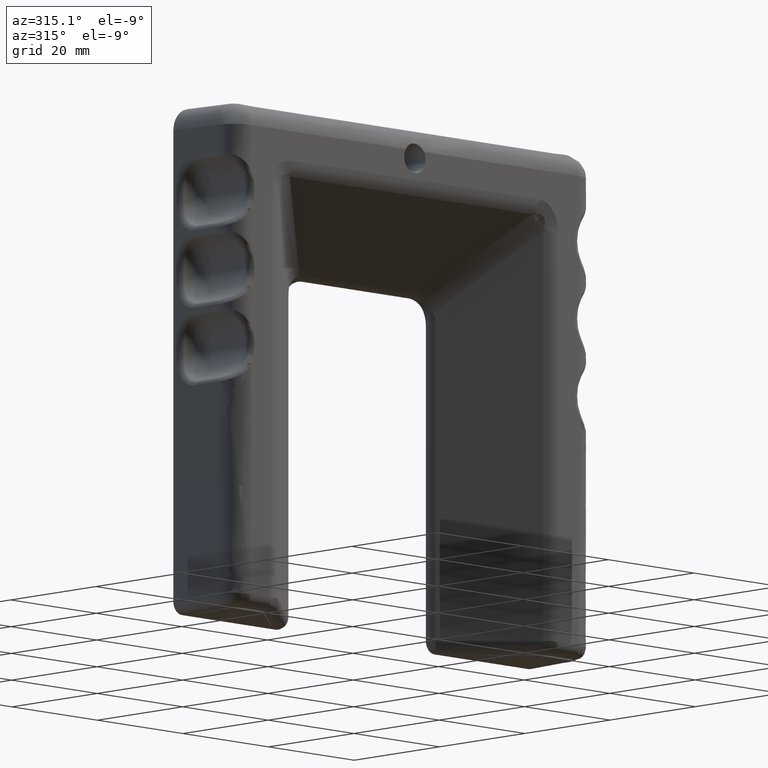
[diagram: clean part render]
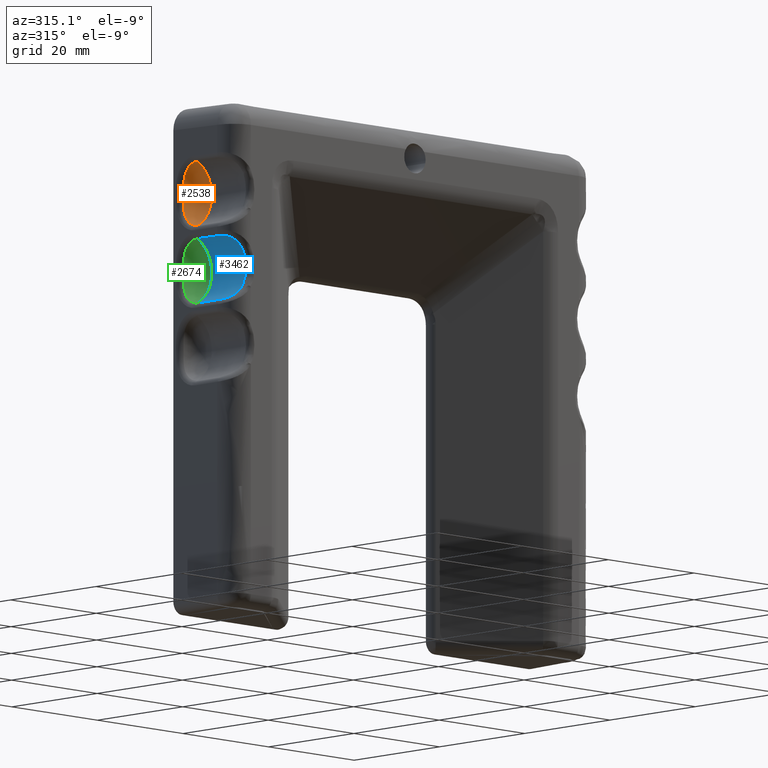
[diagram: same view with three faces highlighted in distinct colors, each labeled with its STEP entity id]
A machine part, auxiliary view with three faces highlighted in distinct colors.
Their STEP definitions:

[orange] entity #2538 — the highlighted face is a freeform B-spline surface patch.
#2406=CARTESIAN_POINT('',(-42.381732726820893,-5.674698236951155,16.608975936963503));
#2407=CARTESIAN_POINT('',(-38.504365005533096,-5.674698236951156,15.144662086890991));
#2408=CARTESIAN_POINT('',(-38.504362643758050,-5.674698236951156,11.000003416072206));
#2409=CARTESIAN_POINT('',(-38.504360281983018,-5.674698236951156,6.855344745253420));
#2410=CARTESIAN_POINT('',(-42.381726334431313,-5.674698236951155,5.391026476255707));
#2411=CARTESIAN_POINT('',(-42.354216598247362,-4.116295220654493,16.681836101975620));
#2412=CARTESIAN_POINT('',(-38.426482169179444,-4.116295220654494,15.198500927879589));
#2413=CARTESIAN_POINT('',(-38.426479776725131,-4.116295220654494,11.000003460452655));
#2414=CARTESIAN_POINT('',(-38.426477384270818,-4.116295220654494,6.801505993025717));
#2415=CARTESIAN_POINT('',(-42.354210122821108,-4.116295220654493,5.318166342602980));
#2416=CARTESIAN_POINT('',(-42.745349306732784,-3.016722077959861,15.646152844219030));
#2417=CARTESIAN_POINT('',(-39.533561046432084,-3.016722077959861,14.433199528690684));
#2418=CARTESIAN_POINT('',(-39.533559090073567,-3.016722077959861,11.000002829599190));
#2419=CARTESIAN_POINT('',(-39.533557133715057,-3.016722077959861,7.566806130507686));
#2420=CARTESIAN_POINT('',(-42.745344011645145,-3.016722077959861,6.353849154596040));
#2421=CARTESIAN_POINT('',(-43.076702589151829,-2.085204047922048,14.768759980980915));
#2422=CARTESIAN_POINT('',(-40.471437659449045,-2.085204047922047,13.784864257413872));
#2423=CARTESIAN_POINT('',(-40.471436072534893,-2.085204047922048,11.000002295163274));
#2424=CARTESIAN_POINT('',(-40.471434485620755,-2.085204047922047,8.215140332912675));
#2425=CARTESIAN_POINT('',(-43.076698294003748,-2.085204047922048,7.231241640199633));
#2426=CARTESIAN_POINT('',(-43.542887167091756,-2.006248975286396,13.534346310320773));
#2427=CARTESIAN_POINT('',(-41.790946582997655,-2.006248975286396,12.872714232530365));
#2428=CARTESIAN_POINT('',(-41.790945515858851,-2.006248975286396,11.000001543259506));
#2429=CARTESIAN_POINT('',(-41.790944448720062,-2.006248975286396,9.127288853988643));
#2430=CARTESIAN_POINT('',(-43.542884278769691,-2.006248975286396,8.465654779561611));
#2438=(BOUNDED_SURFACE()B_SPLINE_SURFACE(2,2,((#2406,#2411,#2416,#2421,#2426),(#2407,#2412,#2417,#2422,#2427),(#2408,#2413,#2418,#2423,#2428),(#2409,#2414,#2419,#2424,#2429),(#2410,#2415,#2420,#2425,#2430)),.UNSPECIFIED.,.F.,.F.,.U.)B_SPLINE_SURFACE_WITH_KNOTS((3,2,3),(3,2,3),(0.0,7.475880774824408,14.951761549648820),(0.0,3.086335519484820,5.765041819415041),.UNSPECIFIED.)GEOMETRIC_REPRESENTATION_ITEM()RATIONAL_B_SPLINE_SURFACE(((0.761752169857399,0.753364911309349,0.893152553776853,0.771827430125812,0.762121420233728),(0.663030087276588,0.655729806440937,0.777401153701776,0.671799607022557,0.663351483288220),(0.852880246085841,0.843489623495575,1.0,0.864160805298047,0.853293669721890),(0.663030087276588,0.655729806440937,0.777401153701776,0.671799607022557,0.663351483288220),(0.761752169857399,0.753364911309349,0.893152553776853,0.771827430125812,0.762121420233728)))REPRESENTATION_ITEM('')SURFACE());
#2439=CARTESIAN_POINT('',(-41.853633440458303,-5.499999999999170,16.384862489227402));
#2440=VERTEX_POINT('',#2439);
#2441=CARTESIAN_POINT('',(-41.853633440458303,-5.499999999999170,5.615137509858960));
#2442=VERTEX_POINT('',#2441);
#2443=CARTESIAN_POINT('',(-41.853633440458303,-5.499999999999170,16.384862489227402));
#2444=CARTESIAN_POINT('',(-41.856584676132613,-5.346579023171993,16.386312860785200));
#2445=CARTESIAN_POINT('',(-41.859085207057817,-5.192836833049045,16.376174705959809));
#2446=CARTESIAN_POINT('',(-41.863075096806057,-4.892064608962775,16.333926993754101));
#2447=CARTESIAN_POINT('',(-41.864579948323787,-4.744418569689763,16.301914349883649));
#2448=CARTESIAN_POINT('',(-41.866066833827922,-4.526973207329910,16.237903883717539));
#2449=CARTESIAN_POINT('',(-41.866433243167492,-4.455164559479135,16.213891770930690));
#2450=CARTESIAN_POINT('',(-41.866891260125293,-4.312908960998904,16.160455234230479));
#2451=CARTESIAN_POINT('',(-41.866982725785533,-4.242294338130806,16.130952680740560));
#2452=CARTESIAN_POINT('',(-41.866809569758722,-4.033647596257422,16.034625837007880));
#2453=CARTESIAN_POINT('',(-41.866105356694810,-3.901061219650717,15.961130904209540));
#2454=CARTESIAN_POINT('',(-41.863428018449987,-3.648082863807552,15.796770668121690));
#2455=CARTESIAN_POINT('',(-41.861455077945543,-3.527697002001820,15.705896634478570));
#2456=CARTESIAN_POINT('',(-41.857394951926473,-3.356150334014472,15.556722930956081));
#2457=CARTESIAN_POINT('',(-41.855857267489156,-3.300478069550162,15.504848036818119));
#2458=CARTESIAN_POINT('',(-41.852377290610796,-3.192185210896068,15.396753014662270));
#2459=CARTESIAN_POINT('',(-41.850444702862092,-3.139915694489551,15.340862795110910));
#2460=CARTESIAN_POINT('',(-41.839856134499200,-2.889769106241492,15.054935931639820));
#2461=CARTESIAN_POINT('',(-41.828362433258199,-2.722852288856742,14.803377574201960));
#2462=CARTESIAN_POINT('',(-41.809373697045729,-2.550845464899505,14.463808639519170));
#2463=CARTESIAN_POINT('',(-41.805334468720638,-2.518239921359452,14.394475692155570));
#2464=CARTESIAN_POINT('',(-41.796899618697772,-2.457431760902418,14.255270738367940));
#2465=CARTESIAN_POINT('',(-41.792492702093533,-2.429110422737158,14.185185529800430));
#2466=CARTESIAN_POINT('',(-41.778726276825729,-2.349893752683583,13.973599450390330));
#2467=CARTESIAN_POINT('',(-41.768812917901847,-2.304740746312602,13.830769913942140));
#2468=CARTESIAN_POINT('',(-41.737277260102609,-2.188646024967524,13.397795551593960));
#2469=CARTESIAN_POINT('',(-41.713644232131649,-2.137120293083624,13.103168227407631));
#2470=CARTESIAN_POINT('',(-41.678992795801733,-2.084545828564952,12.655278527099309));
#2471=CARTESIAN_POINT('',(-41.667619615950969,-2.071117510348199,12.504823677646741));
#2472=CARTESIAN_POINT('',(-41.646643260876452,-2.050224541108152,12.203240302985320));
#2473=CARTESIAN_POINT('',(-41.637054923565401,-2.042741948170684,12.052158814539100));
#2474=CARTESIAN_POINT('',(-41.621037559603842,-2.031682745850847,11.749870828853471));
#2475=CARTESIAN_POINT('',(-41.614618026880983,-2.028096164332299,11.598632224094590));
#2476=CARTESIAN_POINT('',(-41.605967142069417,-2.023487758396749,11.295960105820789));
#2477=CARTESIAN_POINT('',(-41.603743771350558,-2.022462831211196,11.144519515205030));
#2478=CARTESIAN_POINT('',(-41.603883224770392,-2.022530471401179,10.841467448515260));
#2479=CARTESIAN_POINT('',(-41.606245554724687,-2.023623012561760,10.690070680425681));
#2480=CARTESIAN_POINT('',(-41.615145942162002,-2.028391686761656,10.387533338505740));
#2481=CARTESIAN_POINT('',(-41.621675770829562,-2.032071147889947,10.236392526453290));
#2482=CARTESIAN_POINT('',(-41.637867057134102,-2.043359831114292,9.934366129825127));
#2483=CARTESIAN_POINT('',(-41.647516232091839,-2.050975274169855,9.783480229361423));
#2484=CARTESIAN_POINT('',(-41.668593298724552,-2.072216952660157,9.481973066627335));
#2485=CARTESIAN_POINT('',(-41.680002922891518,-2.085854782281554,9.331463188146685));
#2486=CARTESIAN_POINT('',(-41.714786712005278,-2.139332885533741,8.882497363267980));
#2487=CARTESIAN_POINT('',(-41.738538472765050,-2.191756037406010,8.586060361627473));
#2488=CARTESIAN_POINT('',(-41.765017449139833,-2.291217627683201,8.220997110387646));
#2489=CARTESIAN_POINT('',(-41.770164315642553,-2.312810465270323,8.148294845724184));
#2490=CARTESIAN_POINT('',(-41.780046280696013,-2.359321360079489,8.004659839756426));
#2491=CARTESIAN_POINT('',(-41.784791856466747,-2.384275486949824,7.933586909991356));
#2492=CARTESIAN_POINT('',(-41.798415360865327,-2.464525096788218,7.722729868476797));
#2493=CARTESIAN_POINT('',(-41.806676459491293,-2.525200481833008,7.585304024248304));
#2494=CARTESIAN_POINT('',(-41.817831177561331,-2.628184851775540,7.384421032424101));
#2495=CARTESIAN_POINT('',(-41.821344369783688,-2.664509407589331,7.318336606372967));
#2496=CARTESIAN_POINT('',(-41.827968377232487,-2.741385148914539,7.188025450432973));
#2497=CARTESIAN_POINT('',(-41.831088306516129,-2.782081500971005,7.123594201370753));
#2498=CARTESIAN_POINT('',(-41.839771082034162,-2.909551069609752,6.935228153338933));
#2499=CARTESIAN_POINT('',(-41.844672296857851,-3.001701121551501,6.816042800160234));
#2500=CARTESIAN_POINT('',(-41.852931768784572,-3.200740427418707,6.590821715107126));
#2501=CARTESIAN_POINT('',(-41.856290750810437,-3.307620812493343,6.484778063377791));
#2502=CARTESIAN_POINT('',(-41.860294483737682,-3.479713030518467,6.336221954241474));
#2503=CARTESIAN_POINT('',(-41.861458250087253,-3.539249514420449,6.288324123070021));
#2504=CARTESIAN_POINT('',(-41.863426789309663,-3.660646012619766,6.197505042164736));
#2505=CARTESIAN_POINT('',(-41.864236269740793,-3.722648940118067,6.154438008031042));
#2506=CARTESIAN_POINT('',(-41.866182963940517,-3.912538933876601,6.032205894937249));
#2507=CARTESIAN_POINT('',(-41.866841782540632,-4.044289616065163,5.959978223979137));
#2508=CARTESIAN_POINT('',(-41.866976150417692,-4.249823005960737,5.865836304523803));
#2509=CARTESIAN_POINT('',(-41.866877771968433,-4.319656255160087,5.836829844931821));
#2510=CARTESIAN_POINT('',(-41.866402000807831,-4.462052675006332,5.783719326132551));
#2511=CARTESIAN_POINT('',(-41.866023695857827,-4.534499925240735,5.759688443428031));
#2512=CARTESIAN_POINT('',(-41.864507818218023,-4.752327314659345,5.696173561983094));
#2513=CARTESIAN_POINT('',(-41.862989663499903,-4.899352187287901,5.664771247310748));
#2514=CARTESIAN_POINT('',(-41.859018776982133,-5.196964120702789,5.623534548773671));
#2515=CARTESIAN_POINT('',(-41.856565987766260,-5.347550544167833,5.613696322615125));
#2516=CARTESIAN_POINT('',(-41.853633440458303,-5.499999999999173,5.615137509858950));
#2517=B_SPLINE_CURVE_WITH_KNOTS('',3,(#2443,#2444,#2445,#2446,#2447,#2448,#2449,#2450,#2451,#2452,#2453,#2454,#2455,#2456,#2457,#2458,#2459,#2460,#2461,#2462,#2463,#2464,#2465,#2466,#2467,#2468,#2469,#2470,#2471,#2472,#2473,#2474,#2475,#2476,#2477,#2478,#2479,#2480,#2481,#2482,#2483,#2484,#2485,#2486,#2487,#2488,#2489,#2490,#2491,#2492,#2493,#2494,#2495,#2496,#2497,#2498,#2499,#2500,#2501,#2502,#2503,#2504,#2505,#2506,#2507,#2508,#2509,#2510,#2511,#2512,#2513,#2514,#2515,#2516),.UNSPECIFIED.,.F.,.U.,(4,2,2,2,2,2,2,2,2,2,2,2,2,2,2,2,2,2,2,2,2,2,2,2,2,2,2,2,2,2,2,2,2,2,2,2,4),(0.0,0.031250000000000,0.062499999999999,0.078124999999999,0.093749999999999,0.124999999999998,0.156249999999998,0.171874999999998,0.187499999999998,0.249999999999997,0.265624999999998,0.281249999999998,0.312499999999998,0.374999999999998,0.406249999999999,0.437499999999999,0.468749999999999,0.499999999999999,0.531250000000000,0.562500000000000,0.593750000000000,0.625000000000001,0.687500000000001,0.703125000000001,0.718750000000001,0.750000000000001,0.765625000000001,0.781250000000001,0.812500000000001,0.843750000000001,0.859375000000001,0.875000000000001,0.906250000000001,0.921875000000000,0.937500000000000,0.968750000000000,1.0),.UNSPECIFIED.);
#2518=EDGE_CURVE('',#2440,#2442,#2517,.T.);
#2519=ORIENTED_EDGE('',*,*,#2518,.T.);
#2520=CARTESIAN_POINT('',(-41.853633440458303,-5.499999999999170,16.384862489227402));
#2521=CARTESIAN_POINT('',(-41.525574963171337,-5.499999999999178,16.223651866385520));
#2522=CARTESIAN_POINT('',(-40.779594776877488,-5.499999999999155,15.768267096299020));
#2523=CARTESIAN_POINT('',(-39.868950181326568,-5.499999999999182,14.892748794143831));
#2524=CARTESIAN_POINT('',(-39.175775474862512,-5.499999999999162,13.841686515470940));
#2525=CARTESIAN_POINT('',(-38.710523718154597,-5.499999999999139,12.728962841536431));
#2526=CARTESIAN_POINT('',(-38.453677442291280,-5.499999999999282,11.404728012724350));
#2527=CARTESIAN_POINT('',(-38.523411371503173,-5.499999999999080,10.072377219611040));
#2528=CARTESIAN_POINT('',(-38.882031017730768,-5.499999999999249,8.775641146144430));
#2529=CARTESIAN_POINT('',(-39.450386301638297,-5.499999999999135,7.668585977492370));
#2530=CARTESIAN_POINT('',(-40.426976083261309,-5.499999999999160,6.500339658524500));
#2531=CARTESIAN_POINT('',(-41.291050719871180,-5.499999999999202,5.891220414877570));
#2532=CARTESIAN_POINT('',(-41.853633440458303,-5.499999999999170,5.615137509858960));
#2533=B_SPLINE_CURVE_WITH_KNOTS('',3,(#2520,#2521,#2522,#2523,#2524,#2525,#2526,#2527,#2528,#2529,#2530,#2531,#2532),.UNSPECIFIED.,.F.,.U.,(4,1,1,1,1,1,1,1,1,1,4),(0.000000165193429,1.096605486409064,2.610977931909551,3.759821957662760,4.856444502973250,6.214148787147471,7.780689847575085,8.825115819465960,10.235052703591840,11.488348548032739,13.368230465651781),.UNSPECIFIED.);
#2534=EDGE_CURVE('',#2440,#2442,#2533,.T.);
#2535=ORIENTED_EDGE('',*,*,#2534,.F.);
#2536=EDGE_LOOP('',(#2519,#2535));
#2537=FACE_OUTER_BOUND('',#2536,.T.);
#2538=ADVANCED_FACE('',(#2537),#2438,.F.);

[blue] entity #3462 — the highlighted face is a freeform B-spline surface patch.
#2572=CARTESIAN_POINT('',(-41.853633440458303,-5.499999999999170,3.384862489228200));
#2573=VERTEX_POINT('',#2572);
#2574=CARTESIAN_POINT('',(-41.853633440458303,-5.499999999999170,-7.384862490140249));
#2575=VERTEX_POINT('',#2574);
#2653=CARTESIAN_POINT('',(-41.853633440458303,-5.499999999999170,3.384862489228200));
#2654=CARTESIAN_POINT('',(-41.400529717686432,-5.499999999999167,3.162342357925617));
#2655=CARTESIAN_POINT('',(-40.668304418189230,-5.499999999999179,2.679206504027464));
#2656=CARTESIAN_POINT('',(-39.816348780401050,-5.499999999999161,1.800988269979214));
#2657=CARTESIAN_POINT('',(-39.153462308504821,-5.499999999999186,0.814936055052704));
#2658=CARTESIAN_POINT('',(-38.736405464446527,-5.499999999999121,-0.207464453458691));
#2659=CARTESIAN_POINT('',(-38.521394882580530,-5.499999999999204,-1.267711618802484));
#2660=CARTESIAN_POINT('',(-38.477916961783222,-5.499999999999083,-2.174885449697641));
#2661=CARTESIAN_POINT('',(-38.584032544414200,-5.499999999999225,-3.146533523650364));
#2662=CARTESIAN_POINT('',(-38.812239930880992,-5.499999999999150,-3.971713885559584));
#2663=CARTESIAN_POINT('',(-39.172740115365407,-5.499999999999170,-4.803334865691634));
#2664=CARTESIAN_POINT('',(-39.591686216325783,-5.499999999999170,-5.489242350104749));
#2665=CARTESIAN_POINT('',(-40.218014807748268,-5.499999999999169,-6.238550957440070));
#2666=CARTESIAN_POINT('',(-40.942410801322332,-5.499999999999165,-6.871159139904701));
#2667=CARTESIAN_POINT('',(-41.556819534468232,-5.499999999999176,-7.239016679783704));
#2668=CARTESIAN_POINT('',(-41.853633440458303,-5.499999999999170,-7.384862490140249));
#2669=B_SPLINE_CURVE_WITH_KNOTS('',3,(#2653,#2654,#2655,#2656,#2657,#2658,#2659,#2660,#2661,#2662,#2663,#2664,#2665,#2666,#2667,#2668),.UNSPECIFIED.,.F.,.U.,(4,1,1,1,1,1,1,1,1,1,1,1,1,4),(0.000000165205561,1.514347745902303,2.610977931916528,3.655381548918422,5.065313279445338,5.900859505918025,6.892959095599444,7.780689847578555,8.825115819468714,9.451748053547680,10.496157282391470,11.227229958579141,12.376095491619649,13.368230465651790),.UNSPECIFIED.);
#2670=EDGE_CURVE('',#2573,#2575,#2669,.T.);
#3338=CARTESIAN_POINT('',(-41.900725399658050,-5.299999999999166,3.407751061887848));
#3339=CARTESIAN_POINT('',(-41.900725399658050,-13.704999999999300,3.407751061887848));
#3340=CARTESIAN_POINT('',(-30.034498697349449,-5.299999999999166,-2.295836494755114));
#3341=CARTESIAN_POINT('',(-30.034498697349449,-13.704999999999302,-2.295836494755114));
#3342=CARTESIAN_POINT('',(-42.123996036085103,-5.299999999999166,-7.509501353909180));
#3343=CARTESIAN_POINT('',(-42.123996036085103,-13.704999999999300,-7.509501353909180));
#3351=(BOUNDED_SURFACE()B_SPLINE_SURFACE(1,2,((#3338,#3340,#3342),(#3339,#3341,#3343)),.UNSPECIFIED.,.F.,.F.,.U.)B_SPLINE_SURFACE_WITH_KNOTS((2,2),(3,3),(0.0,8.405000000000138),(0.0,15.437318736344441),.UNSPECIFIED.)GEOMETRIC_REPRESENTATION_ITEM()RATIONAL_B_SPLINE_SURFACE(((1.0,0.414693242656239,1.0),(1.0,0.414693242656239,1.0)))REPRESENTATION_ITEM('')SURFACE());
#3352=ORIENTED_EDGE('',*,*,#2670,.T.);
#3353=CARTESIAN_POINT('',(-41.778042677626651,-10.552357219311061,-7.347050433681300));
#3354=VERTEX_POINT('',#3353);
#3355=CARTESIAN_POINT('',(-41.853633440458303,-5.499999999999170,-7.384862490140249));
#3356=CARTESIAN_POINT('',(-41.778042677626651,-10.552357219311061,-7.347050433681300));
#3357=QUASI_UNIFORM_CURVE('',1,(#3355,#3356),.UNSPECIFIED.,.F.,.U.);
#3358=EDGE_CURVE('',#2575,#3354,#3357,.T.);
#3359=ORIENTED_EDGE('',*,*,#3358,.T.);
#3360=CARTESIAN_POINT('',(-39.207005747235343,-13.499999999999259,-4.825634768209620));
#3361=VERTEX_POINT('',#3360);
#3362=CARTESIAN_POINT('',(-41.778042677626651,-10.552357219311061,-7.347050433681300));
#3363=CARTESIAN_POINT('',(-41.776375908267752,-10.663761230701329,-7.346201951865429));
#3364=CARTESIAN_POINT('',(-41.769410848817550,-10.774717563258630,-7.342665349898638));
#3365=CARTESIAN_POINT('',(-41.744882385035822,-10.995729326470009,-7.330057887234236));
#3366=CARTESIAN_POINT('',(-41.727392986307613,-11.104935414135999,-7.321023942113147));
#3367=CARTESIAN_POINT('',(-41.682432108339817,-11.319557450120159,-7.297353737554835));
#3368=CARTESIAN_POINT('',(-41.654938308527761,-11.425170942516480,-7.282707330838485));
#3369=CARTESIAN_POINT('',(-41.606170684935371,-11.580977223646910,-7.256053185801873));
#3370=CARTESIAN_POINT('',(-41.588657772137992,-11.632475869932509,-7.246384457484560));
#3371=CARTESIAN_POINT('',(-41.551085824118879,-11.734574269158330,-7.225358229513076));
#3372=CARTESIAN_POINT('',(-41.530964392441810,-11.785317479782620,-7.213964840522746));
#3373=CARTESIAN_POINT('',(-41.424625891916122,-12.034926714846341,-7.152834440763589));
#3374=CARTESIAN_POINT('',(-41.322431442989732,-12.219411489335110,-7.091444885893211));
#3375=CARTESIAN_POINT('',(-41.175612601279020,-12.430827241401660,-6.994965764431727));
#3376=CARTESIAN_POINT('',(-41.145288458485823,-12.472142058482660,-6.974670329325537));
#3377=CARTESIAN_POINT('',(-41.082755441995822,-12.552796462374589,-6.931923969709834));
#3378=CARTESIAN_POINT('',(-41.050456659674232,-12.592238875343480,-6.909408823969845));
#3379=CARTESIAN_POINT('',(-40.951397083694893,-12.706817708256850,-6.838800921559728));
#3380=CARTESIAN_POINT('',(-40.883201699645852,-12.777426111869350,-6.788173897482996));
#3381=CARTESIAN_POINT('',(-40.743493374926722,-12.907818297994320,-6.679369315802893));
#3382=CARTESIAN_POINT('',(-40.671977993560503,-12.967598706634821,-6.621191140076685));
#3383=CARTESIAN_POINT('',(-40.562895487359746,-13.049554634969629,-6.527858000054050));
#3384=CARTESIAN_POINT('',(-40.526232654286900,-13.075586368452379,-6.495735284789559));
#3385=CARTESIAN_POINT('',(-40.452414062481473,-13.125133834464339,-6.429391690413794));
#3386=CARTESIAN_POINT('',(-40.415144148069110,-13.148712317940740,-6.395059368249481));
#3387=CARTESIAN_POINT('',(-40.230084397947643,-13.259162791125910,-6.220109902445761));
#3388=CARTESIAN_POINT('',(-40.085107204702233,-13.324779129444000,-6.068740982976676));
#3389=CARTESIAN_POINT('',(-39.875823900168442,-13.397994217200560,-5.824719374777250));
#3390=CARTESIAN_POINT('',(-39.807416314802772,-13.418162963787610,-5.740546878903990));
#3391=CARTESIAN_POINT('',(-39.707224354228117,-13.442959579291500,-5.610029052662553));
#3392=CARTESIAN_POINT('',(-39.674241315022080,-13.450307459511739,-5.565819965106651));
#3393=CARTESIAN_POINT('',(-39.609748606836369,-13.463221612915181,-5.476846303876460));
#3394=CARTESIAN_POINT('',(-39.578155468570642,-13.468809613295941,-5.431974884646675));
#3395=CARTESIAN_POINT('',(-39.423439581536783,-13.492902259086780,-5.205716373847555));
#3396=CARTESIAN_POINT('',(-39.310041613994798,-13.499999999998760,-5.018642108296531));
#3397=CARTESIAN_POINT('',(-39.207005747235343,-13.499999999999259,-4.825634768209631));
#3398=B_SPLINE_CURVE_WITH_KNOTS('',3,(#3362,#3363,#3364,#3365,#3366,#3367,#3368,#3369,#3370,#3371,#3372,#3373,#3374,#3375,#3376,#3377,#3378,#3379,#3380,#3381,#3382,#3383,#3384,#3385,#3386,#3387,#3388,#3389,#3390,#3391,#3392,#3393,#3394,#3395,#3396,#3397),.UNSPECIFIED.,.F.,.U.,(4,2,2,2,2,2,2,2,2,2,2,2,2,2,2,2,2,4),(0.0,0.062499999999999,0.124999999999999,0.187499999999998,0.218749999999998,0.249999999999997,0.374999999999994,0.406249999999994,0.437499999999995,0.499999999999996,0.562499999999997,0.593749999999998,0.624999999999998,0.749999999999999,0.812499999999999,0.843749999999998,0.874999999999997,1.0),.UNSPECIFIED.);
#3399=EDGE_CURVE('',#3354,#3361,#3398,.T.);
#3400=ORIENTED_EDGE('',*,*,#3399,.T.);
#3401=CARTESIAN_POINT('',(-39.207005747224500,-13.499999999999259,0.825634767277268));
#3402=VERTEX_POINT('',#3401);
#3403=CARTESIAN_POINT('',(-39.207005747235343,-13.499999999999259,-4.825634768209620));
#3404=CARTESIAN_POINT('',(-39.004876494874509,-13.499999999999259,-4.447160724984220));
#3405=CARTESIAN_POINT('',(-38.739994843606731,-13.499999999999330,-3.789560344169238));
#3406=CARTESIAN_POINT('',(-38.544428601800249,-13.499999999999250,-2.857532173181102));
#3407=CARTESIAN_POINT('',(-38.466742673324731,-13.499999999999391,-1.847239960675185));
#3408=CARTESIAN_POINT('',(-38.602312493115079,-13.499999999999170,-0.588532410588094));
#3409=CARTESIAN_POINT('',(-38.961505202423709,-13.499999999999330,0.366083735396186));
#3410=CARTESIAN_POINT('',(-39.207005747224500,-13.499999999999259,0.825634767277268));
#3411=B_SPLINE_CURVE_WITH_KNOTS('',3,(#3403,#3404,#3405,#3406,#3407,#3408,#3409,#3410),.UNSPECIFIED.,.F.,.U.,(4,1,1,1,1,4),(0.000000018463252,1.287194742678014,2.114687664589805,2.850220631414011,4.321295856517576,5.884318127223351),.UNSPECIFIED.);
#3412=EDGE_CURVE('',#3361,#3402,#3411,.T.);
#3413=ORIENTED_EDGE('',*,*,#3412,.T.);
#3414=CARTESIAN_POINT('',(-41.778042677626651,-10.552357219311061,3.347050432769250));
#3415=VERTEX_POINT('',#3414);
#3416=CARTESIAN_POINT('',(-39.207005747224493,-13.499999999999259,0.825634767277272));
#3417=CARTESIAN_POINT('',(-39.258541113165407,-13.499999999999270,0.922171092089058));
#3418=CARTESIAN_POINT('',(-39.312819213245092,-13.498201442717241,1.017493547479009));
#3419=CARTESIAN_POINT('',(-39.398429782957507,-13.491861874347260,1.158640415537677));
#3420=CARTESIAN_POINT('',(-39.427665997482507,-13.489140082715080,1.205383063356116));
#3421=CARTESIAN_POINT('',(-39.487556137091438,-13.482297969510460,1.298250951192903));
#3422=CARTESIAN_POINT('',(-39.518187302588778,-13.478176653668520,1.344333641107788));
#3423=CARTESIAN_POINT('',(-39.673555964633522,-13.453834037384921,1.571252174453445));
#3424=CARTESIAN_POINT('',(-39.805905193263300,-13.422401956768351,1.743133700113089));
#3425=CARTESIAN_POINT('',(-40.014331367122217,-13.349565158326710,1.986247722038791));
#3426=CARTESIAN_POINT('',(-40.085455538299037,-13.320987133853070,2.064831100988850));
#3427=CARTESIAN_POINT('',(-40.230582667454357,-13.253589145722660,2.217004899725182));
#3428=CARTESIAN_POINT('',(-40.304938173050672,-13.214511796942359,2.290890764952994));
#3429=CARTESIAN_POINT('',(-40.526075864207613,-13.082454935467300,2.499897346379100));
#3430=CARTESIAN_POINT('',(-40.672351428373616,-12.974267721513881,2.623982407972148));
#3431=CARTESIAN_POINT('',(-40.849074217231852,-12.809264937304871,2.761590869242701));
#3432=CARTESIAN_POINT('',(-40.883968017280608,-12.774888916475231,2.788122694734089));
#3433=CARTESIAN_POINT('',(-40.952159076591776,-12.703972286704330,2.838866708436357));
#3434=CARTESIAN_POINT('',(-40.985548296899772,-12.667347032446450,2.863150812120815));
#3435=CARTESIAN_POINT('',(-41.083477835153687,-12.553981589763641,2.932930436231281));
#3436=CARTESIAN_POINT('',(-41.145783171234747,-12.473758163096671,2.975360362513290));
#3437=CARTESIAN_POINT('',(-41.234255041822813,-12.346394801217050,3.033503271354919));
#3438=CARTESIAN_POINT('',(-41.262913986616070,-12.302767464440979,3.051965462661007));
#3439=CARTESIAN_POINT('',(-41.318471223284440,-12.213136163172880,3.087136280547104));
#3440=CARTESIAN_POINT('',(-41.345324161556412,-12.167185564370740,3.103814404323040));
#3441=CARTESIAN_POINT('',(-41.422164131308293,-12.027536221234049,3.150779635752654));
#3442=CARTESIAN_POINT('',(-41.468791353253813,-11.931493721604070,3.178235407797909));
#3443=CARTESIAN_POINT('',(-41.552816881897058,-11.733779672118761,3.226515040349301));
#3444=CARTESIAN_POINT('',(-41.590216518951927,-11.632108183322661,3.247336861341276));
#3445=CARTESIAN_POINT('',(-41.639186330200452,-11.475415151101990,3.274096240497901));
#3446=CARTESIAN_POINT('',(-41.654349535226018,-11.422350267988209,3.282283488975918));
#3447=CARTESIAN_POINT('',(-41.681972599746231,-11.315880313436470,3.297071549165511));
#3448=CARTESIAN_POINT('',(-41.694465083623903,-11.262394384595829,3.303690591778171));
#3449=CARTESIAN_POINT('',(-41.750444345495069,-10.993744636759351,3.333151482582984));
#3450=CARTESIAN_POINT('',(-41.774711997372989,-10.774974187237371,3.345354924260776));
#3451=CARTESIAN_POINT('',(-41.778042677626651,-10.552357219311061,3.347050432769250));
#3452=B_SPLINE_CURVE_WITH_KNOTS('',3,(#3416,#3417,#3418,#3419,#3420,#3421,#3422,#3423,#3424,#3425,#3426,#3427,#3428,#3429,#3430,#3431,#3432,#3433,#3434,#3435,#3436,#3437,#3438,#3439,#3440,#3441,#3442,#3443,#3444,#3445,#3446,#3447,#3448,#3449,#3450,#3451),.UNSPECIFIED.,.F.,.U.,(4,2,2,2,2,2,2,2,2,2,2,2,2,2,2,2,2,4),(0.0,0.062500000000003,0.093750000000004,0.125000000000006,0.250000000000009,0.312500000000010,0.375000000000011,0.500000000000010,0.531250000000009,0.562500000000008,0.625000000000007,0.656250000000005,0.687500000000003,0.750000000000002,0.812500000000001,0.843750000000000,0.875000000000000,1.0),.UNSPECIFIED.);
#3453=EDGE_CURVE('',#3402,#3415,#3452,.T.);
#3454=ORIENTED_EDGE('',*,*,#3453,.T.);
#3455=CARTESIAN_POINT('',(-41.778042677626651,-10.552357219311061,3.347050432769250));
#3456=CARTESIAN_POINT('',(-41.853633440458303,-5.499999999999170,3.384862489228200));
#3457=QUASI_UNIFORM_CURVE('',1,(#3455,#3456),.UNSPECIFIED.,.F.,.U.);
#3458=EDGE_CURVE('',#3415,#2573,#3457,.T.);
#3459=ORIENTED_EDGE('',*,*,#3458,.T.);
#3460=EDGE_LOOP('',(#3352,#3359,#3400,#3413,#3454,#3459));
#3461=FACE_OUTER_BOUND('',#3460,.T.);
#3462=ADVANCED_FACE('',(#3461),#3351,.F.);

[green] entity #2674 — the highlighted face is a freeform B-spline surface patch.
#2539=CARTESIAN_POINT('',(-42.383865508378982,-5.769605998660422,3.603328528541966));
#2540=CARTESIAN_POINT('',(-38.510401722385225,-5.769605998660421,2.140489025741059));
#2541=CARTESIAN_POINT('',(-38.510399362988139,-5.769605998660421,-1.999996587366942));
#2542=CARTESIAN_POINT('',(-38.510397003591052,-5.769605998660421,-6.140482200474941));
#2543=CARTESIAN_POINT('',(-42.383859122425555,-5.769605998660422,-7.603326117751847));
#2544=CARTESIAN_POINT('',(-42.339839923817038,-4.156711695017009,3.719904206961443));
#2545=CARTESIAN_POINT('',(-38.385789810188093,-4.156711695017008,2.226630738603225));
#2546=CARTESIAN_POINT('',(-38.385787401704420,-4.156711695017009,-1.999996516358580));
#2547=CARTESIAN_POINT('',(-38.385784993220746,-4.156711695017008,-6.226623771320386));
#2548=CARTESIAN_POINT('',(-42.339833405005649,-4.156711695017009,-7.719901745996535));
#2549=CARTESIAN_POINT('',(-42.745349306732784,-3.016722077959849,2.646152844219806));
#2550=CARTESIAN_POINT('',(-39.533561046432098,-3.016722077959850,1.433199528691473));
#2551=CARTESIAN_POINT('',(-39.533559090073581,-3.016722077959849,-1.999997170400020));
#2552=CARTESIAN_POINT('',(-39.533557133715071,-3.016722077959850,-5.433193869491512));
#2553=CARTESIAN_POINT('',(-42.745344011645138,-3.016722077959849,-6.646150845403153));
#2554=CARTESIAN_POINT('',(-43.076702589151829,-2.085204047922041,1.768759980981691));
#2555=CARTESIAN_POINT('',(-40.471437659449059,-2.085204047922042,0.784864257414653));
#2556=CARTESIAN_POINT('',(-40.471436072534907,-2.085204047922042,-1.999997704835933));
#2557=CARTESIAN_POINT('',(-40.471434485620762,-2.085204047922042,-4.784859667086523));
#2558=CARTESIAN_POINT('',(-43.076698294003748,-2.085204047922041,-5.768758359799558));
#2559=CARTESIAN_POINT('',(-43.542887167091763,-2.006248975286400,0.534346310321554));
#2560=CARTESIAN_POINT('',(-41.790946582997677,-2.006248975286401,-0.127285767468849));
#2561=CARTESIAN_POINT('',(-41.790945515858859,-2.006248975286400,-1.999998456739700));
#2562=CARTESIAN_POINT('',(-41.790944448720062,-2.006248975286401,-3.872711146010552));
#2563=CARTESIAN_POINT('',(-43.542884278769677,-2.006248975286400,-4.534345220437580));
#2571=(BOUNDED_SURFACE()B_SPLINE_SURFACE(2,2,((#2539,#2544,#2549,#2554,#2559),(#2540,#2545,#2550,#2555,#2560),(#2541,#2546,#2551,#2556,#2561),(#2542,#2547,#2552,#2557,#2562),(#2543,#2548,#2553,#2558,#2563)),.UNSPECIFIED.,.F.,.F.,.U.)B_SPLINE_SURFACE_WITH_KNOTS((3,2,3),(3,2,3),(0.0,7.468353669605357,14.936707339210709),(0.0,3.179934696401777,5.857343154173177),.UNSPECIFIED.)GEOMETRIC_REPRESENTATION_ITEM()RATIONAL_B_SPLINE_SURFACE(((0.762410073536189,0.749055761551016,0.893152553776853,0.771827430125810,0.762121420233727),(0.663602727501097,0.651979116842126,0.777401153701776,0.671799607022556,0.663351483288219),(0.853616854491659,0.838664972051528,1.0,0.864160805298045,0.853293669721889),(0.663602727501097,0.651979116842126,0.777401153701776,0.671799607022556,0.663351483288219),(0.762410073536189,0.749055761551016,0.893152553776853,0.771827430125810,0.762121420233727)))REPRESENTATION_ITEM('')SURFACE());
#2572=CARTESIAN_POINT('',(-41.853633440458303,-5.499999999999170,3.384862489228200));
#2573=VERTEX_POINT('',#2572);
#2574=CARTESIAN_POINT('',(-41.853633440458303,-5.499999999999170,-7.384862490140249));
#2575=VERTEX_POINT('',#2574);
#2576=CARTESIAN_POINT('',(-41.853633440458303,-5.499999999999170,3.384862489228195));
#2577=CARTESIAN_POINT('',(-41.856584676132613,-5.346579023171993,3.386312860785986));
#2578=CARTESIAN_POINT('',(-41.859085207057817,-5.192836833049046,3.376174705960596));
#2579=CARTESIAN_POINT('',(-41.863075096806050,-4.892064608962775,3.333926993754893));
#2580=CARTESIAN_POINT('',(-41.864579948323787,-4.744418569689764,3.301914349884454));
#2581=CARTESIAN_POINT('',(-41.866066833827922,-4.526973207329910,3.237903883718335));
#2582=CARTESIAN_POINT('',(-41.866433243167492,-4.455164559479136,3.213891770931484));
#2583=CARTESIAN_POINT('',(-41.866891260125271,-4.312908960998902,3.160455234231270));
#2584=CARTESIAN_POINT('',(-41.866982725785547,-4.242294338130813,3.130952680741355));
#2585=CARTESIAN_POINT('',(-41.866809569758722,-4.033647596257425,3.034625837008678));
#2586=CARTESIAN_POINT('',(-41.866105356694810,-3.901061219650722,2.961130904210335));
#2587=CARTESIAN_POINT('',(-41.863428018450001,-3.648082863807555,2.796770668122478));
#2588=CARTESIAN_POINT('',(-41.861455077945543,-3.527697002001823,2.705896634479364));
#2589=CARTESIAN_POINT('',(-41.857394951926487,-3.356150334014476,2.556722930956878));
#2590=CARTESIAN_POINT('',(-41.855857267489156,-3.300478069550167,2.504848036818912));
#2591=CARTESIAN_POINT('',(-41.852377290610818,-3.192185210896072,2.396753014663070));
#2592=CARTESIAN_POINT('',(-41.850444702862099,-3.139915694489552,2.340862795111703));
#2593=CARTESIAN_POINT('',(-41.839856134499200,-2.889769106241493,2.054935931640605));
#2594=CARTESIAN_POINT('',(-41.828362433258206,-2.722852288856744,1.803377574202763));
#2595=CARTESIAN_POINT('',(-41.809373697045721,-2.550845464899507,1.463808639519961));
#2596=CARTESIAN_POINT('',(-41.805334468720652,-2.518239921359454,1.394475692156365));
#2597=CARTESIAN_POINT('',(-41.796899618697772,-2.457431760902420,1.255270738368736));
#2598=CARTESIAN_POINT('',(-41.792492702093547,-2.429110422737160,1.185185529801223));
#2599=CARTESIAN_POINT('',(-41.778726276825729,-2.349893752683583,0.973599450391126));
#2600=CARTESIAN_POINT('',(-41.768812917901847,-2.304740746312603,0.830769913942936));
#2601=CARTESIAN_POINT('',(-41.737277260102601,-2.188646024967525,0.397795551594758));
#2602=CARTESIAN_POINT('',(-41.713644232131649,-2.137120293083625,0.103168227408429));
#2603=CARTESIAN_POINT('',(-41.678992795801733,-2.084545828564951,-0.344721472899893));
#2604=CARTESIAN_POINT('',(-41.667619615950983,-2.071117510348201,-0.495176322352455));
#2605=CARTESIAN_POINT('',(-41.646643260876438,-2.050224541108151,-0.796759697013875));
#2606=CARTESIAN_POINT('',(-41.637054923565401,-2.042741948170685,-0.947841185460104));
#2607=CARTESIAN_POINT('',(-41.621037559603828,-2.031682745850847,-1.250129171145727));
#2608=CARTESIAN_POINT('',(-41.614618026880969,-2.028096164332299,-1.401367775904611));
#2609=CARTESIAN_POINT('',(-41.605967142069417,-2.023487758396748,-1.704039894178406));
#2610=CARTESIAN_POINT('',(-41.603743771350558,-2.022462831211196,-1.855480484794172));
#2611=CARTESIAN_POINT('',(-41.603883224770392,-2.022530471401179,-2.158532551483936));
#2612=CARTESIAN_POINT('',(-41.606245554724687,-2.023623012561760,-2.309929319573520));
#2613=CARTESIAN_POINT('',(-41.615145942162009,-2.028391686761655,-2.612466661493466));
#2614=CARTESIAN_POINT('',(-41.621675770829562,-2.032071147889947,-2.763607473545912));
#2615=CARTESIAN_POINT('',(-41.637867057134088,-2.043359831114292,-3.065633870174072));
#2616=CARTESIAN_POINT('',(-41.647516232091839,-2.050975274169854,-3.216519770637779));
#2617=CARTESIAN_POINT('',(-41.668593298724552,-2.072216952660158,-3.518026933371868));
#2618=CARTESIAN_POINT('',(-41.680002922891511,-2.085854782281554,-3.668536811852519));
#2619=CARTESIAN_POINT('',(-41.714786712005292,-2.139332885533742,-4.117502636731219));
#2620=CARTESIAN_POINT('',(-41.738538472765043,-2.191756037406007,-4.413939638371723));
#2621=CARTESIAN_POINT('',(-41.765017449139833,-2.291217627683198,-4.779002889611554));
#2622=CARTESIAN_POINT('',(-41.770164315642553,-2.312810465270323,-4.851705154275019));
#2623=CARTESIAN_POINT('',(-41.780046280696020,-2.359321360079488,-4.995340160242777));
#2624=CARTESIAN_POINT('',(-41.784791856466732,-2.384275486949822,-5.066413090007847));
#2625=CARTESIAN_POINT('',(-41.798415360865320,-2.464525096788217,-5.277270131522403));
#2626=CARTESIAN_POINT('',(-41.806676459491293,-2.525200481833006,-5.414695975750898));
#2627=CARTESIAN_POINT('',(-41.817831177561317,-2.628184851775539,-5.615578967575103));
#2628=CARTESIAN_POINT('',(-41.821344369783688,-2.664509407589330,-5.681663393626239));
#2629=CARTESIAN_POINT('',(-41.827968377232480,-2.741385148914537,-5.811974549566229));
#2630=CARTESIAN_POINT('',(-41.831088306516122,-2.782081500971005,-5.876405798628454));
#2631=CARTESIAN_POINT('',(-41.839771082034183,-2.909551069609751,-6.064771846660269));
#2632=CARTESIAN_POINT('',(-41.844672296857837,-3.001701121551499,-6.183957199838972));
#2633=CARTESIAN_POINT('',(-41.852931768784572,-3.200740427418705,-6.409178284892078));
#2634=CARTESIAN_POINT('',(-41.856290750810437,-3.307620812493342,-6.515221936621413));
#2635=CARTESIAN_POINT('',(-41.860294483737682,-3.479713030518465,-6.663778045757733));
#2636=CARTESIAN_POINT('',(-41.861458250087267,-3.539249514420449,-6.711675876929183));
#2637=CARTESIAN_POINT('',(-41.863426789309663,-3.660646012619765,-6.802494957834468));
#2638=CARTESIAN_POINT('',(-41.864236269740793,-3.722648940118065,-6.845561991968165));
#2639=CARTESIAN_POINT('',(-41.866182963940517,-3.912538933876600,-6.967794105061958));
#2640=CARTESIAN_POINT('',(-41.866841782540618,-4.044289616065163,-7.040021776020069));
#2641=CARTESIAN_POINT('',(-41.866976150417692,-4.249823005960737,-7.134163695475402));
#2642=CARTESIAN_POINT('',(-41.866877771968412,-4.319656255160086,-7.163170155067387));
#2643=CARTESIAN_POINT('',(-41.866402000807831,-4.462052675006333,-7.216280673866654));
#2644=CARTESIAN_POINT('',(-41.866023695857827,-4.534499925240735,-7.240311556571173));
#2645=CARTESIAN_POINT('',(-41.864507818218030,-4.752327314659348,-7.303826438016110));
#2646=CARTESIAN_POINT('',(-41.862989663499903,-4.899352187287900,-7.335228752688456));
#2647=CARTESIAN_POINT('',(-41.859018776982118,-5.196964120702791,-7.376465451225536));
#2648=CARTESIAN_POINT('',(-41.856565987766267,-5.347550544167835,-7.386303677384078));
#2649=CARTESIAN_POINT('',(-41.853633440458303,-5.499999999999166,-7.384862490140249));
#2650=B_SPLINE_CURVE_WITH_KNOTS('',3,(#2576,#2577,#2578,#2579,#2580,#2581,#2582,#2583,#2584,#2585,#2586,#2587,#2588,#2589,#2590,#2591,#2592,#2593,#2594,#2595,#2596,#2597,#2598,#2599,#2600,#2601,#2602,#2603,#2604,#2605,#2606,#2607,#2608,#2609,#2610,#2611,#2612,#2613,#2614,#2615,#2616,#2617,#2618,#2619,#2620,#2621,#2622,#2623,#2624,#2625,#2626,#2627,#2628,#2629,#2630,#2631,#2632,#2633,#2634,#2635,#2636,#2637,#2638,#2639,#2640,#2641,#2642,#2643,#2644,#2645,#2646,#2647,#2648,#2649),.UNSPECIFIED.,.F.,.U.,(4,2,2,2,2,2,2,2,2,2,2,2,2,2,2,2,2,2,2,2,2,2,2,2,2,2,2,2,2,2,2,2,2,2,2,2,4),(0.0,0.031250000000000,0.062499999999999,0.078124999999999,0.093749999999999,0.124999999999999,0.156249999999999,0.171874999999999,0.187499999999999,0.249999999999999,0.265624999999999,0.281249999999999,0.312499999999999,0.374999999999999,0.406249999999999,0.437499999999999,0.468749999999999,0.499999999999999,0.531249999999999,0.562499999999999,0.593749999999999,0.624999999999999,0.687499999999999,0.703124999999999,0.718749999999999,0.749999999999999,0.765624999999999,0.781249999999999,0.812499999999999,0.843749999999999,0.859374999999999,0.874999999999999,0.906249999999999,0.921874999999999,0.937499999999999,0.968750000000000,1.0),.UNSPECIFIED.);
#2651=EDGE_CURVE('',#2573,#2575,#2650,.T.);
#2652=ORIENTED_EDGE('',*,*,#2651,.T.);
#2653=CARTESIAN_POINT('',(-41.853633440458303,-5.499999999999170,3.384862489228200));
#2654=CARTESIAN_POINT('',(-41.400529717686432,-5.499999999999167,3.162342357925617));
#2655=CARTESIAN_POINT('',(-40.668304418189230,-5.499999999999179,2.679206504027464));
#2656=CARTESIAN_POINT('',(-39.816348780401050,-5.499999999999161,1.800988269979214));
#2657=CARTESIAN_POINT('',(-39.153462308504821,-5.499999999999186,0.814936055052704));
#2658=CARTESIAN_POINT('',(-38.736405464446527,-5.499999999999121,-0.207464453458691));
#2659=CARTESIAN_POINT('',(-38.521394882580530,-5.499999999999204,-1.267711618802484));
#2660=CARTESIAN_POINT('',(-38.477916961783222,-5.499999999999083,-2.174885449697641));
#2661=CARTESIAN_POINT('',(-38.584032544414200,-5.499999999999225,-3.146533523650364));
#2662=CARTESIAN_POINT('',(-38.812239930880992,-5.499999999999150,-3.971713885559584));
#2663=CARTESIAN_POINT('',(-39.172740115365407,-5.499999999999170,-4.803334865691634));
#2664=CARTESIAN_POINT('',(-39.591686216325783,-5.499999999999170,-5.489242350104749));
#2665=CARTESIAN_POINT('',(-40.218014807748268,-5.499999999999169,-6.238550957440070));
#2666=CARTESIAN_POINT('',(-40.942410801322332,-5.499999999999165,-6.871159139904701));
#2667=CARTESIAN_POINT('',(-41.556819534468232,-5.499999999999176,-7.239016679783704));
#2668=CARTESIAN_POINT('',(-41.853633440458303,-5.499999999999170,-7.384862490140249));
#2669=B_SPLINE_CURVE_WITH_KNOTS('',3,(#2653,#2654,#2655,#2656,#2657,#2658,#2659,#2660,#2661,#2662,#2663,#2664,#2665,#2666,#2667,#2668),.UNSPECIFIED.,.F.,.U.,(4,1,1,1,1,1,1,1,1,1,1,1,1,4),(0.000000165205561,1.514347745902303,2.610977931916528,3.655381548918422,5.065313279445338,5.900859505918025,6.892959095599444,7.780689847578555,8.825115819468714,9.451748053547680,10.496157282391470,11.227229958579141,12.376095491619649,13.368230465651790),.UNSPECIFIED.);
#2670=EDGE_CURVE('',#2573,#2575,#2669,.T.);
#2671=ORIENTED_EDGE('',*,*,#2670,.F.);
#2672=EDGE_LOOP('',(#2652,#2671));
#2673=FACE_OUTER_BOUND('',#2672,.T.);
#2674=ADVANCED_FACE('',(#2673),#2571,.F.);